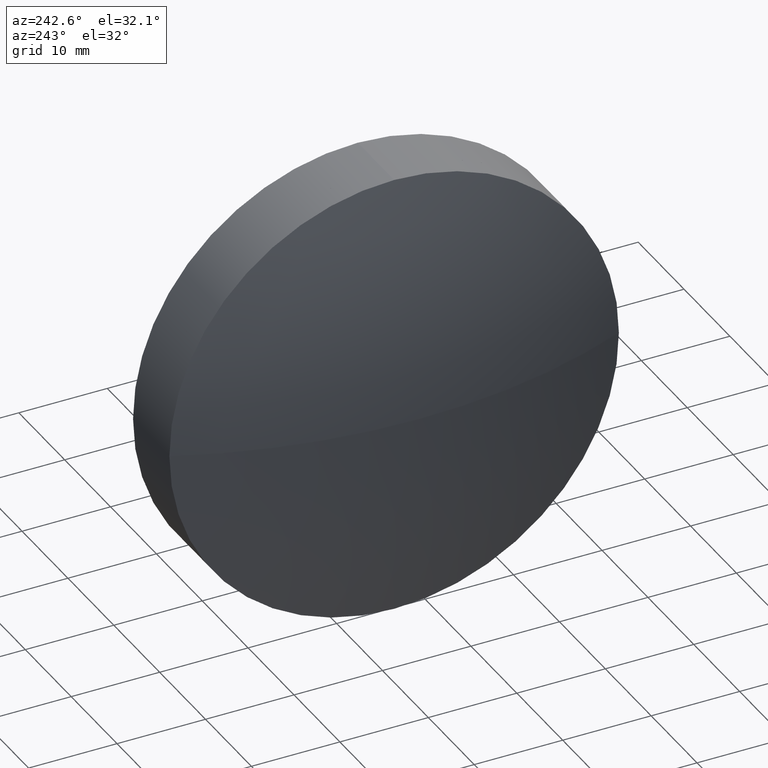
[diagram: clean part render]
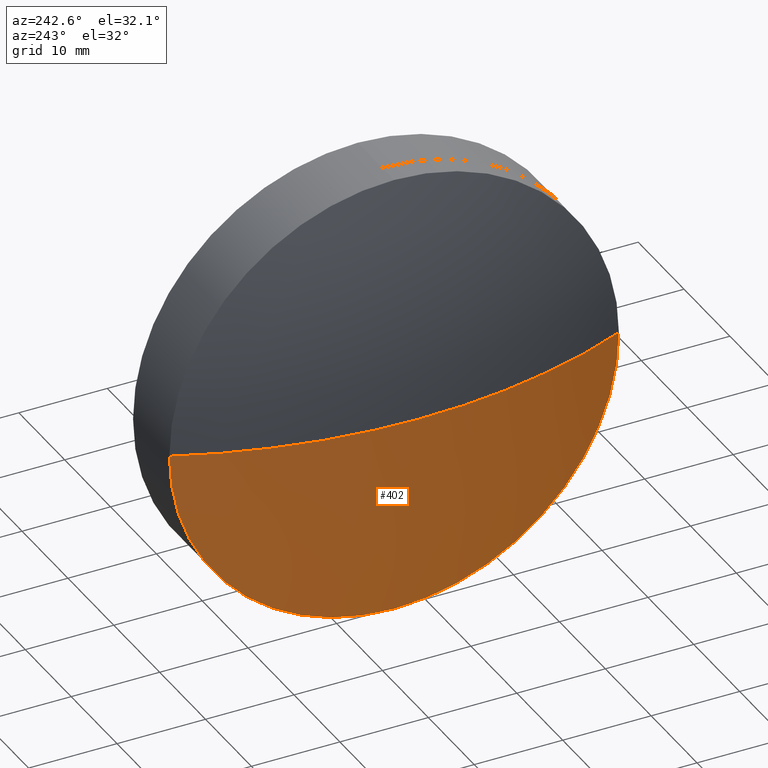
[diagram: same view with one face highlighted and labeled with its STEP entity id]
A machine part, auxiliary view. The second image highlights one B-rep face of the part: STEP entity #402.
In plain terms, the highlighted spherical surface has radius 63.62 mm.
Its self-contained STEP definition (entity closure, byte-faithful):
#5 = EDGE_CURVE ( 'NONE', #343, #176, #364, .T. ) ;
#14 = DIRECTION ( 'NONE',  ( -1.000000000000000000, -0.000000000000000000, -0.000000000000000000 ) ) ;
#19 = CARTESIAN_POINT ( 'NONE',  ( -81.76059203481264603, 64.41514532454267794, 0.000000000000000000 ) ) ;
#29 = DIRECTION ( 'NONE',  ( 0.000000000000000000, 1.224646799147353207E-16, -1.000000000000000000 ) ) ;
#50 = AXIS2_PLACEMENT_3D ( 'NONE', #292, #439, #56 ) ;
#56 = DIRECTION ( 'NONE',  ( 1.000000000000000000, 0.000000000000000000, 0.000000000000000000 ) ) ;
#61 = AXIS2_PLACEMENT_3D ( 'NONE', #265, #29, #375 ) ;
#97 = CIRCLE ( 'NONE', #344, 25.39999999999999858 ) ;
#98 = SPHERICAL_SURFACE ( 'NONE', #143, 63.61999999999999744 ) ;
#103 = DIRECTION ( 'NONE',  ( -0.000000000000000000, 0.000000000000000000, -1.000000000000000000 ) ) ;
#135 = CARTESIAN_POINT ( 'NONE',  ( -81.76059203481264603, 64.41514532454267794, 0.000000000000000000 ) ) ;
#143 = AXIS2_PLACEMENT_3D ( 'NONE', #233, #103, #378 ) ;
#144 = ORIENTED_EDGE ( 'NONE', *, *, #380, .T. ) ;
#165 = DIRECTION ( 'NONE',  ( 0.000000000000000000, 0.000000000000000000, 1.000000000000000000 ) ) ;
#168 = EDGE_CURVE ( 'NONE', #343, #276, #97, .T. ) ;
#176 = VERTEX_POINT ( 'NONE', #219 ) ;
#198 = DIRECTION ( 'NONE',  ( -1.000000000000000000, -0.000000000000000000, -0.000000000000000000 ) ) ;
#210 = VERTEX_POINT ( 'NONE', #293 ) ;
#219 = CARTESIAN_POINT ( 'NONE',  ( -87.05097348642850363, 64.41514532454267794, 0.000000000000000000 ) ) ;
#233 = CARTESIAN_POINT ( 'NONE',  ( -23.43097348642850264, 64.41514532454267794, 0.000000000000000000 ) ) ;
#256 = CIRCLE ( 'NONE', #61, 63.62000000000001165 ) ;
#261 = DIRECTION ( 'NONE',  ( 0.000000000000000000, 0.000000000000000000, 1.000000000000000000 ) ) ;
#265 = CARTESIAN_POINT ( 'NONE',  ( -23.43097348642850264, 64.41514532454267794, 0.000000000000000000 ) ) ;
#276 = VERTEX_POINT ( 'NONE', #296 ) ;
#278 = AXIS2_PLACEMENT_3D ( 'NONE', #135, #198, #165 ) ;
#292 = CARTESIAN_POINT ( 'NONE',  ( -23.43097348642850264, 64.41514532454267794, 0.000000000000000000 ) ) ;
#293 = CARTESIAN_POINT ( 'NONE',  ( -81.76059203481264603, 39.01514532454267226, -3.110602869834276865E-15 ) ) ;
#296 = CARTESIAN_POINT ( 'NONE',  ( -81.76059203481264603, 64.41514532454267794, -25.39999999999999858 ) ) ;
#317 = ORIENTED_EDGE ( 'NONE', *, *, #168, .T. ) ;
#335 = CIRCLE ( 'NONE', #278, 25.39999999999999858 ) ;
#343 = VERTEX_POINT ( 'NONE', #405 ) ;
#344 = AXIS2_PLACEMENT_3D ( 'NONE', #19, #14, #261 ) ;
#350 = EDGE_LOOP ( 'NONE', ( #317, #390, #144, #446 ) ) ;
#364 = CIRCLE ( 'NONE', #50, 63.61999999999999744 ) ;
#367 = EDGE_CURVE ( 'NONE', #276, #210, #335, .T. ) ;
#375 = DIRECTION ( 'NONE',  ( 0.000000000000000000, 1.000000000000000000, 1.224646799147352961E-16 ) ) ;
#378 = DIRECTION ( 'NONE',  ( 0.000000000000000000, 1.000000000000000000, 0.000000000000000000 ) ) ;
#380 = EDGE_CURVE ( 'NONE', #210, #176, #256, .T. ) ;
#390 = ORIENTED_EDGE ( 'NONE', *, *, #367, .T. ) ;
#402 = ADVANCED_FACE ( 'NONE', ( #411 ), #98, .T. ) ;
#405 = CARTESIAN_POINT ( 'NONE',  ( -81.76059203481264603, 89.81514532454268362, 0.000000000000000000 ) ) ;
#411 = FACE_OUTER_BOUND ( 'NONE', #350, .T. ) ;
#439 = DIRECTION ( 'NONE',  ( -0.000000000000000000, 0.000000000000000000, 1.000000000000000000 ) ) ;
#446 = ORIENTED_EDGE ( 'NONE', *, *, #5, .F. ) ;